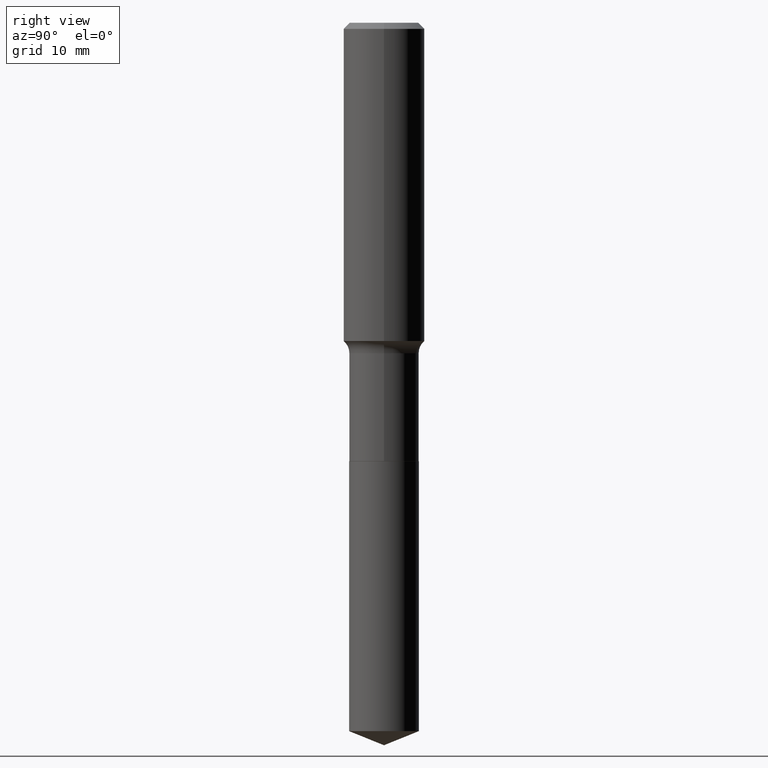
[diagram: clean part render]
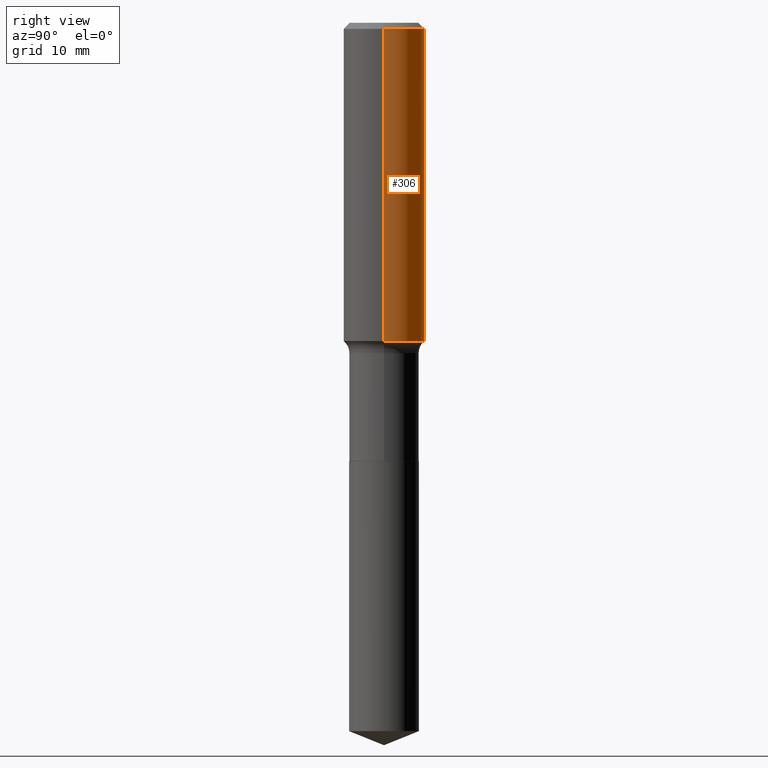
[diagram: same view with one face highlighted and labeled with its STEP entity id]
A machine part, right view. The second image highlights one B-rep face of the part: STEP entity #306.
In plain terms, the highlighted cylindrical surface (partial cylindrical patch) has radius 5 mm, axis along (-0, 0, 1).
Its self-contained STEP definition (entity closure, byte-faithful):
#7 = EDGE_LOOP ( 'NONE', ( #43, #108, #483, #339 ) ) ;
#8 = DIRECTION ( 'NONE',  ( 1.000000000000000000, -6.982962677686265922E-15, 0.000000000000000000 ) ) ;
#12 = CARTESIAN_POINT ( 'NONE',  ( 0.1968500000000001915, -6.762692826187845187E-15, -1.543212207134572189 ) ) ;
#21 = VERTEX_POINT ( 'NONE', #141 ) ;
#25 = DIRECTION ( 'NONE',  ( -2.445468806185136877E-29, 3.491481338843145188E-15, 1.000000000000000000 ) ) ;
#34 = AXIS2_PLACEMENT_3D ( 'NONE', #416, #85, #241 ) ;
#36 = CIRCLE ( 'NONE', #413, 0.1968500000000002192 ) ;
#43 = ORIENTED_EDGE ( 'NONE', *, *, #439, .T. ) ;
#85 = DIRECTION ( 'NONE',  ( -2.445468806185136597E-29, 3.491481338843145583E-15, 1.000000000000000000 ) ) ;
#108 = ORIENTED_EDGE ( 'NONE', *, *, #156, .T. ) ;
#118 = VERTEX_POINT ( 'NONE', #12 ) ;
#141 = CARTESIAN_POINT ( 'NONE',  ( 0.1968500000000000527, -1.477690918335233688E-15, -0.02952750000000022371 ) ) ;
#146 = EDGE_CURVE ( 'NONE', #21, #488, #399, .T. ) ;
#156 = EDGE_CURVE ( 'NONE', #194, #488, #286, .T. ) ;
#183 = CARTESIAN_POINT ( 'NONE',  ( 3.773877313871712479E-29, -5.388096623085302001E-15, -1.543212207134572189 ) ) ;
#194 = VERTEX_POINT ( 'NONE', #406 ) ;
#206 = DIRECTION ( 'NONE',  ( -2.445468806185136877E-29, 3.491481338843145188E-15, 1.000000000000000000 ) ) ;
#211 = AXIS2_PLACEMENT_3D ( 'NONE', #458, #255, #426 ) ;
#221 = LINE ( 'NONE', #324, #420 ) ;
#241 = DIRECTION ( 'NONE',  ( 1.000000000000000000, -6.982962677686266711E-15, 4.876176775795935793E-29 ) ) ;
#255 = DIRECTION ( 'NONE',  ( -2.445468806185136597E-29, 3.491481338843145583E-15, 1.000000000000000000 ) ) ;
#259 = DIRECTION ( 'NONE',  ( -2.445468806185136597E-29, 3.491481338843145583E-15, 1.000000000000000000 ) ) ;
#273 = CYLINDRICAL_SURFACE ( 'NONE', #34, 0.1968500000000001082 ) ;
#286 = LINE ( 'NONE', #396, #477 ) ;
#306 = ADVANCED_FACE ( 'NONE', ( #445 ), #273, .T. ) ;
#324 = CARTESIAN_POINT ( 'NONE',  ( 0.1968500000000001082, -1.374596203102542397E-15, 9.598753983154305062E-30 ) ) ;
#339 = ORIENTED_EDGE ( 'NONE', *, *, #491, .F. ) ;
#396 = CARTESIAN_POINT ( 'NONE',  ( -0.1968500000000001082, 1.398703375343757985E-15, -9.682923725166787881E-30 ) ) ;
#399 = CIRCLE ( 'NONE', #211, 0.1968500000000000527 ) ;
#406 = CARTESIAN_POINT ( 'NONE',  ( -0.1968500000000001915, -3.989393247741543424E-15, -1.543212207134572189 ) ) ;
#413 = AXIS2_PLACEMENT_3D ( 'NONE', #183, #259, #8 ) ;
#416 = CARTESIAN_POINT ( 'NONE',  ( 0.000000000000000000, 0.000000000000000000, 0.000000000000000000 ) ) ;
#420 = VECTOR ( 'NONE', #25, 39.37007874015748143 ) ;
#424 = CARTESIAN_POINT ( 'NONE',  ( -0.1968500000000000527, -1.346892293815238661E-15, -0.02952750000000022371 ) ) ;
#426 = DIRECTION ( 'NONE',  ( 1.000000000000000000, -6.982962677686266711E-15, 0.000000000000000000 ) ) ;
#439 = EDGE_CURVE ( 'NONE', #118, #194, #36, .T. ) ;
#445 = FACE_OUTER_BOUND ( 'NONE', #7, .T. ) ;
#458 = CARTESIAN_POINT ( 'NONE',  ( 7.220858017463217368E-31, -1.030947152326917719E-16, -0.02952750000000022371 ) ) ;
#477 = VECTOR ( 'NONE', #206, 39.37007874015748143 ) ;
#483 = ORIENTED_EDGE ( 'NONE', *, *, #146, .F. ) ;
#488 = VERTEX_POINT ( 'NONE', #424 ) ;
#491 = EDGE_CURVE ( 'NONE', #118, #21, #221, .T. ) ;